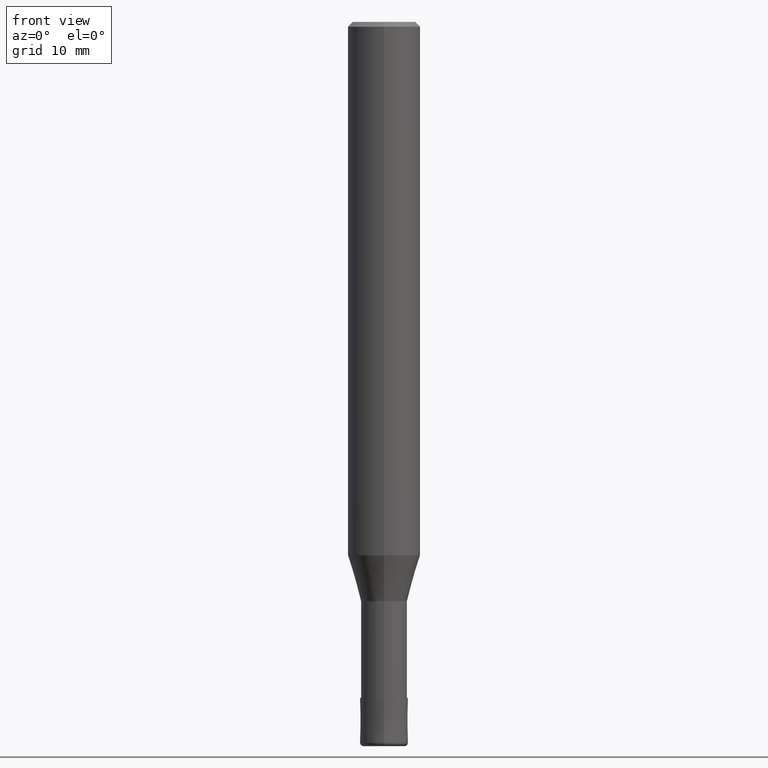
[diagram: clean part render]
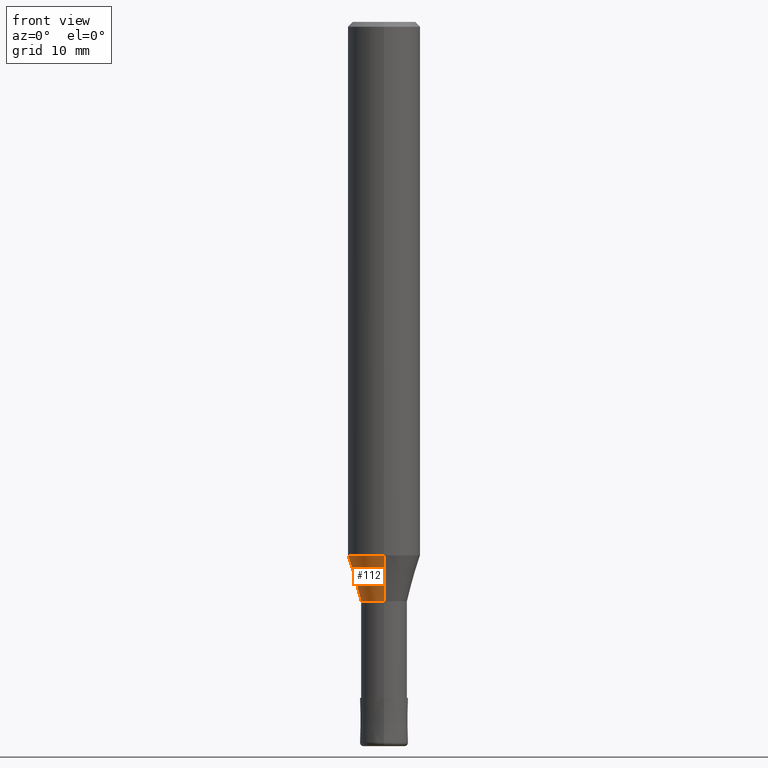
[diagram: same view with one face highlighted and labeled with its STEP entity id]
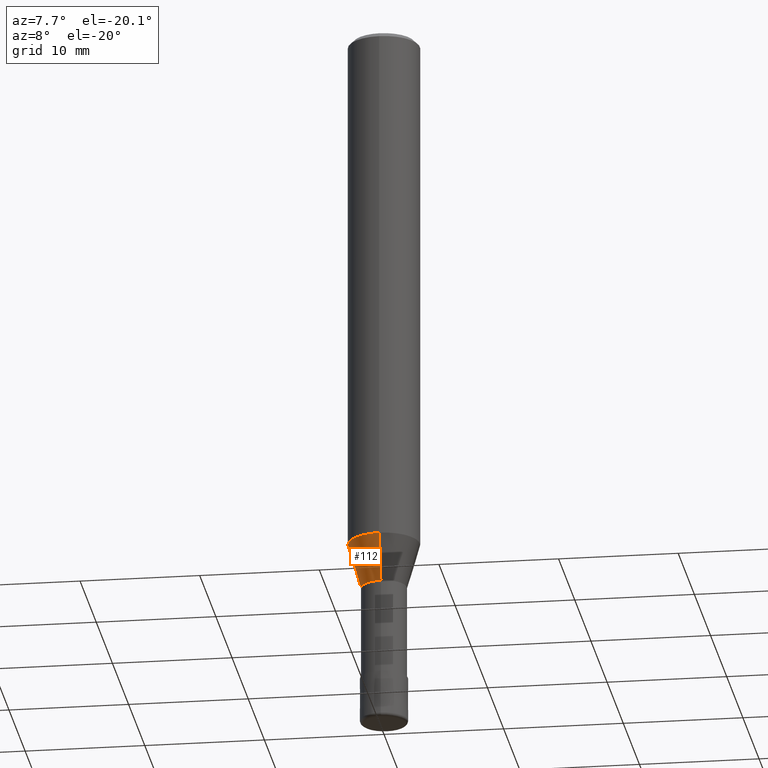
[diagram: same view with one face highlighted and labeled with its STEP entity id]
A machine part, front view. The second image highlights one B-rep face of the part: STEP entity #112.
A second angle (auxiliary view) of the same face is appended — the face is thin or edge-on in the first view.
In plain terms, the highlighted conical surface has half-angle 16.001 deg.
Its self-contained STEP definition (entity closure, byte-faithful):
#102=VERTEX_POINT('',#255);
#106=EDGE_CURVE('',#204,#102,#259,.T.);
#112=ADVANCED_FACE('',(#267),#268,.T.);
#128=EDGE_CURVE('',#212,#204,#287,.T.);
#134=EDGE_CURVE('',#212,#222,#293,.T.);
#190=EDGE_CURVE('',#102,#222,#356,.T.);
#204=VERTEX_POINT('',#371);
#212=VERTEX_POINT('',#379);
#222=VERTEX_POINT('',#391);
#255=CARTESIAN_POINT('',(0.0,2.99995,-44.199));
#259=CIRCLE('',#424,2.99995);
#267=FACE_OUTER_BOUND('',#432,.T.);
#268=CONICAL_SURFACE('',#433,2.45495,0.279272319969089);
#287=LINE('',#457,#458);
#293=CIRCLE('',#465,1.90995);
#356=LINE('',#546,#547);
#371=CARTESIAN_POINT('',(3.67375783114944E-016,-2.99995,-44.199));
#379=CARTESIAN_POINT('',(2.33893690548305E-016,-1.90995,-48.0));
#391=CARTESIAN_POINT('',(0.0,1.90995,-48.0));
#424=AXIS2_PLACEMENT_3D('',#609,#610,#611);
#432=EDGE_LOOP('',(#627,#628,#629,#630));
#433=AXIS2_PLACEMENT_3D('',#631,#632,#633);
#457=CARTESIAN_POINT('',(3.00634736831625E-016,-2.45495,-46.0995));
#458=VECTOR('',#658,1.0);
#465=AXIS2_PLACEMENT_3D('',#659,#660,#661);
#546=CARTESIAN_POINT('',(-3.00634736831625E-016,2.45495,-46.0995));
#547=VECTOR('',#742,1.0);
#609=CARTESIAN_POINT('',(0.0,0.0,-44.199));
#610=DIRECTION('',(0.0,0.0,-1.0));
#611=DIRECTION('',(0.0,1.0,0.0));
#627=ORIENTED_EDGE('',*,*,#190,.T.);
#628=ORIENTED_EDGE('',*,*,#134,.F.);
#629=ORIENTED_EDGE('',*,*,#128,.T.);
#630=ORIENTED_EDGE('',*,*,#106,.T.);
#631=CARTESIAN_POINT('',(0.0,0.0,-46.0995));
#632=DIRECTION('',(-0.0,-0.0,1.0));
#633=DIRECTION('',(0.0,1.0,0.0));
#658=DIRECTION('',(3.37570376370609E-017,-0.275656234607102,0.961256282331738));
#659=CARTESIAN_POINT('',(0.0,0.0,-48.0));
#660=DIRECTION('',(0.0,0.0,-1.0));
#661=DIRECTION('',(0.0,1.0,0.0));
#742=DIRECTION('',(3.37570376370609E-017,-0.275656234607102,-0.961256282331738));